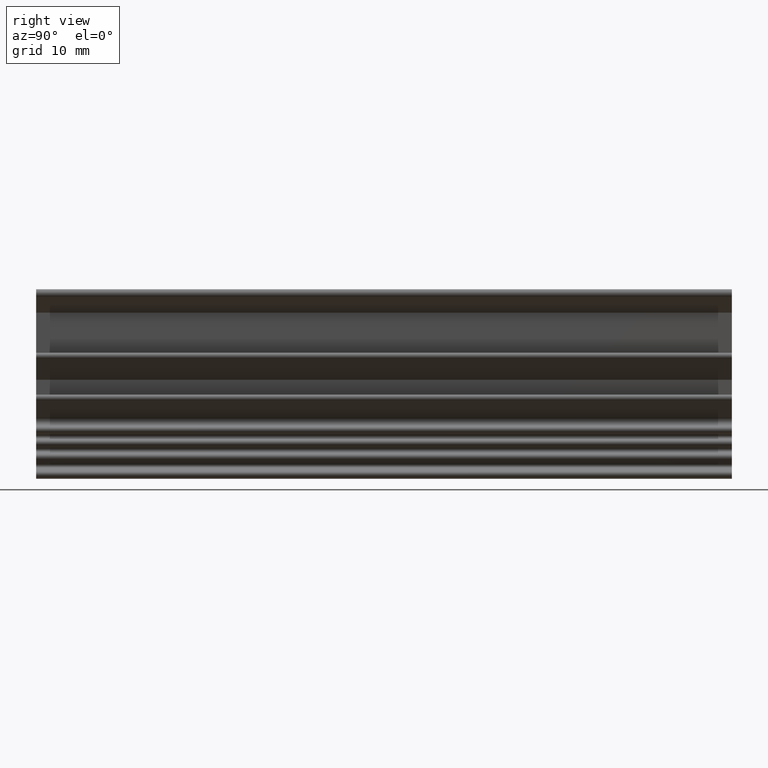
[diagram: clean part render]
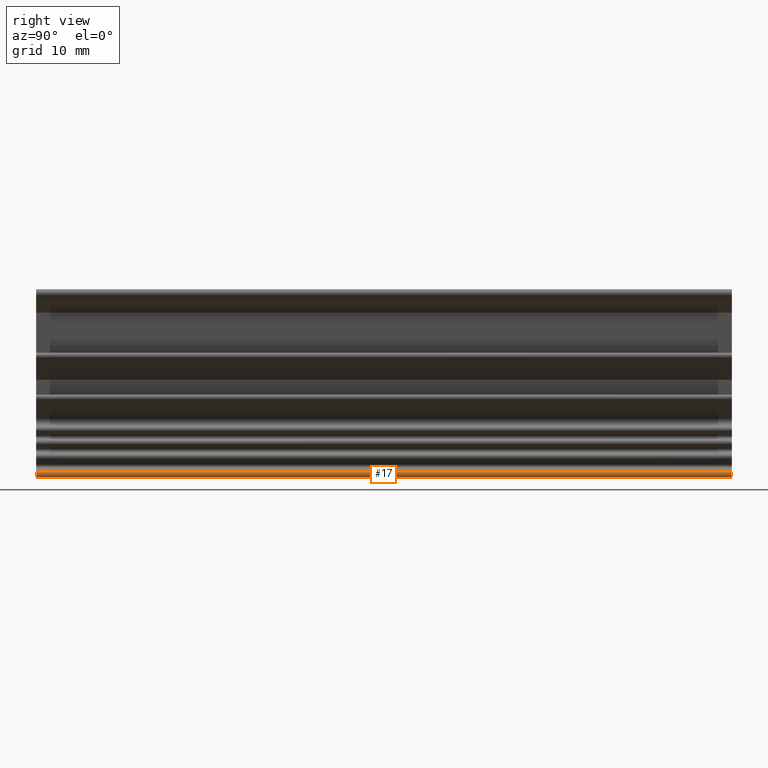
[diagram: same view with one face highlighted and labeled with its STEP entity id]
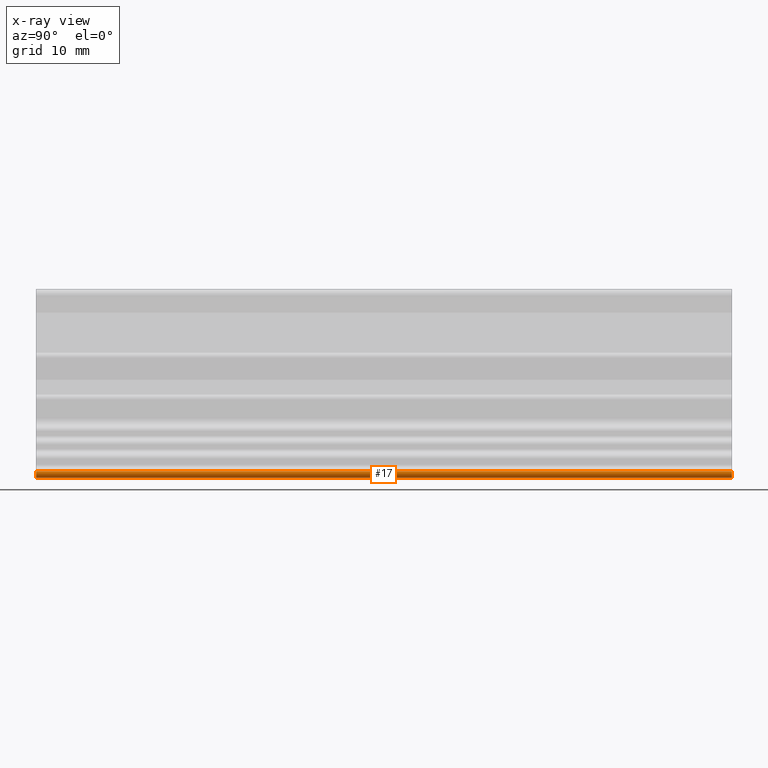
[diagram: x-ray of the same camera — body ghosted, the highlighted face saturated]
A machine part, right view. The second image highlights one B-rep face of the part: STEP entity #17.
The next image is the same camera in x-ray: the body ghosted, the highlighted face saturated — about 0% of this face is hidden behind the body in this view.
In plain terms, the highlighted cylindrical surface (edge-blend (fillet) strip) has radius 0.4 mm, axis along (0, 1, 0).
Its self-contained STEP definition (entity closure, byte-faithful):
#17 = ADVANCED_FACE ( 'NONE', ( #89 ), #88, .T. ) ;
#88 = CYLINDRICAL_SURFACE ( 'NONE', #471, 0.3999999999999999700 ) ;
#89 = FACE_OUTER_BOUND ( 'NONE', #1786, .T. ) ;
#163 = VECTOR ( 'NONE', #1633, 1000.000000000000000 ) ;
#166 = LINE ( 'NONE', #1634, #163 ) ;
#357 = AXIS2_PLACEMENT_3D ( 'NONE', #1675, #1752, #1754 ) ;
#362 = AXIS2_PLACEMENT_3D ( 'NONE', #1683, #1674, #1673 ) ;
#471 = AXIS2_PLACEMENT_3D ( 'NONE', #1203, #1219, #1244 ) ;
#569 = EDGE_CURVE ( 'NONE', #1167, #1090, #166, .T. ) ;
#625 = EDGE_CURVE ( 'NONE', #1171, #1204, #2022, .T. ) ;
#700 = ORIENTED_EDGE ( 'NONE', *, *, #2049, .T. ) ;
#722 = ORIENTED_EDGE ( 'NONE', *, *, #569, .T. ) ;
#769 = ORIENTED_EDGE ( 'NONE', *, *, #625, .T. ) ;
#805 = ORIENTED_EDGE ( 'NONE', *, *, #2052, .T. ) ;
#1090 = VERTEX_POINT ( 'NONE', #1736 ) ;
#1167 = VERTEX_POINT ( 'NONE', #1655 ) ;
#1171 = VERTEX_POINT ( 'NONE', #1652 ) ;
#1203 = CARTESIAN_POINT ( 'NONE',  ( 0.6203005368685009500, 80.00000000000000000, 0.5124671884407630000 ) ) ;
#1204 = VERTEX_POINT ( 'NONE', #1509 ) ;
#1219 = DIRECTION ( 'NONE',  ( 0.0000000000000000000, 1.000000000000000000, 0.0000000000000000000 ) ) ;
#1244 = DIRECTION ( 'NONE',  ( 0.0000000000000000000, 0.0000000000000000000, 1.000000000000000000 ) ) ;
#1469 = CARTESIAN_POINT ( 'NONE',  ( 0.8264968148928411000, 80.00000000000000000, 0.8552252589933162500 ) ) ;
#1470 = DIRECTION ( 'NONE',  ( -0.0000000000000000000, -1.000000000000000000, -0.0000000000000000000 ) ) ;
#1509 = CARTESIAN_POINT ( 'NONE',  ( 0.8264968148927327500, 0.0000000000000000000, 0.8552252589933812000 ) ) ;
#1633 = DIRECTION ( 'NONE',  ( 0.0000000000000000000, 1.000000000000000000, -0.0000000000000000000 ) ) ;
#1634 = CARTESIAN_POINT ( 'NONE',  ( 0.6880502510813095700, 80.00000000000000000, 0.1182464682546159200 ) ) ;
#1652 = CARTESIAN_POINT ( 'NONE',  ( 0.8264968148927327500, 80.00000000000000000, 0.8552252589933812000 ) ) ;
#1655 = CARTESIAN_POINT ( 'NONE',  ( 0.6880502510812097600, -6.938893903907228400E-015, 0.1182464682545987400 ) ) ;
#1673 = DIRECTION ( 'NONE',  ( 0.0000000000000000000, 0.0000000000000000000, 1.000000000000000000 ) ) ;
#1674 = DIRECTION ( 'NONE',  ( 0.0000000000000000000, 1.000000000000000000, 0.0000000000000000000 ) ) ;
#1675 = CARTESIAN_POINT ( 'NONE',  ( 0.6203005368685009500, 80.00000000000000000, 0.5124671884407630000 ) ) ;
#1683 = CARTESIAN_POINT ( 'NONE',  ( 0.6203005368685009500, 0.0000000000000000000, 0.5124671884407630000 ) ) ;
#1736 = CARTESIAN_POINT ( 'NONE',  ( 0.6880502510812097600, 80.00000000000000000, 0.1182464682545987400 ) ) ;
#1752 = DIRECTION ( 'NONE',  ( -0.0000000000000000000, -1.000000000000000000, -0.0000000000000000000 ) ) ;
#1754 = DIRECTION ( 'NONE',  ( 0.0000000000000000000, 0.0000000000000000000, 1.000000000000000000 ) ) ;
#1786 = EDGE_LOOP ( 'NONE', ( #805, #769, #700, #722 ) ) ;
#1986 = CIRCLE ( 'NONE', #357, 0.3999999999999999700 ) ;
#1992 = CIRCLE ( 'NONE', #362, 0.3999999999999999700 ) ;
#2021 = VECTOR ( 'NONE', #1470, 1000.000000000000000 ) ;
#2022 = LINE ( 'NONE', #1469, #2021 ) ;
#2049 = EDGE_CURVE ( 'NONE', #1204, #1167, #1992, .T. ) ;
#2052 = EDGE_CURVE ( 'NONE', #1090, #1171, #1986, .T. ) ;